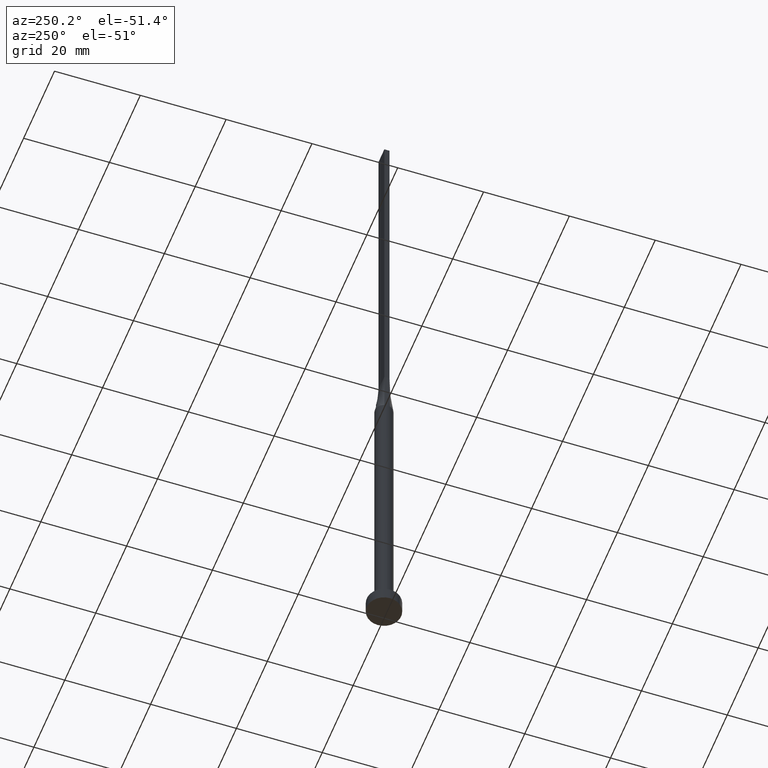
[diagram: clean part render]
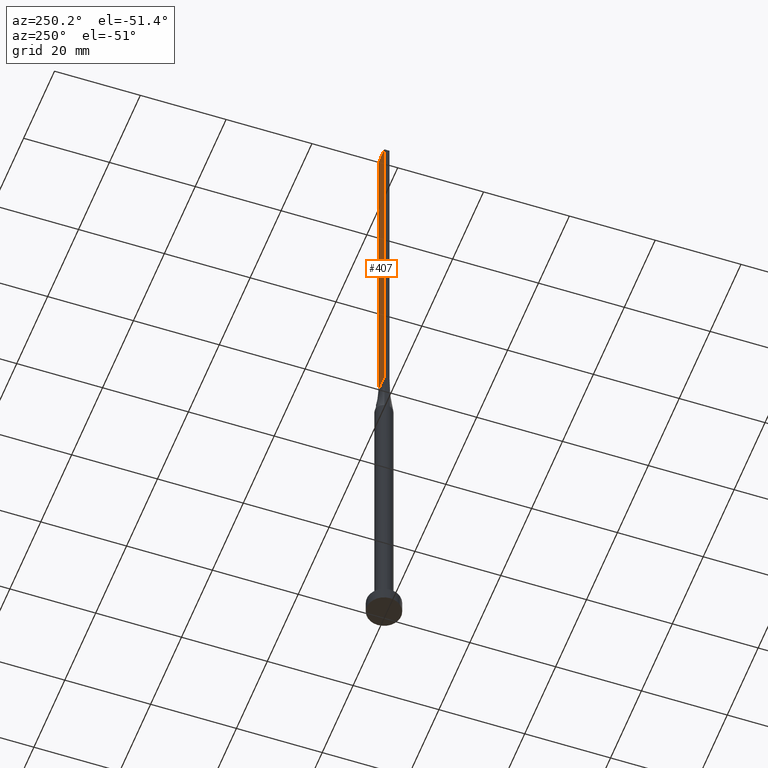
[diagram: same view with one face highlighted and labeled with its STEP entity id]
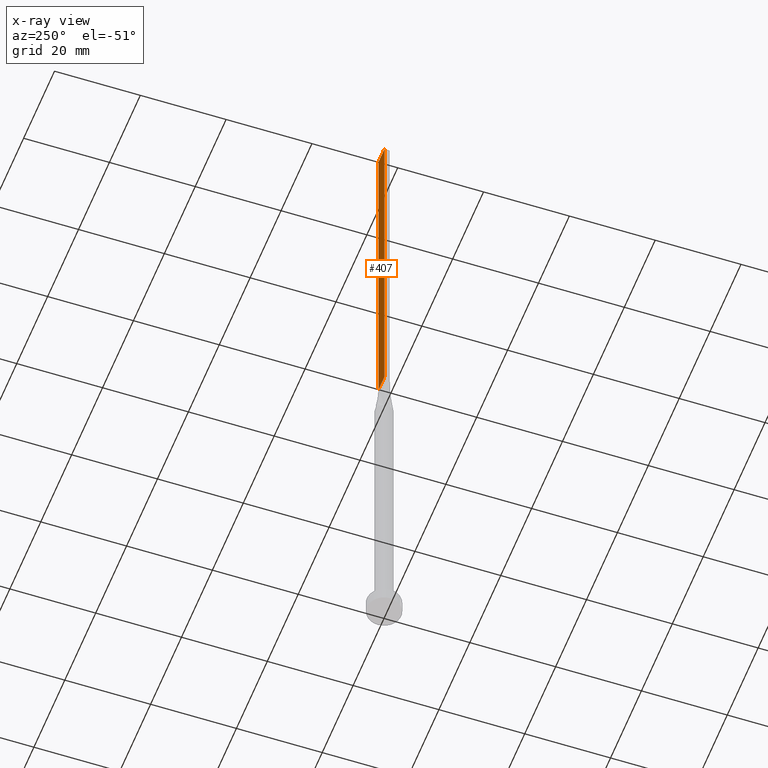
[diagram: x-ray of the same camera — body ghosted, the highlighted face saturated]
A machine part, auxiliary view. The second image highlights one B-rep face of the part: STEP entity #407.
The next image is the same camera in x-ray: the body ghosted, the highlighted face saturated — about 0% of this face is hidden behind the body in this view.
In plain terms, the highlighted planar face has unit normal (0, -1, 0).
Its self-contained STEP definition (entity closure, byte-faithful):
#10 = EDGE_CURVE ( 'NONE', #565, #192, #511, .T. ) ;
#33 = DIRECTION ( 'NONE',  ( -0.000000000000000000, -0.000000000000000000, -1.000000000000000000 ) ) ;
#45 = VECTOR ( 'NONE', #523, 1000.000000000000000 ) ;
#56 = ORIENTED_EDGE ( 'NONE', *, *, #527, .T. ) ;
#62 = VECTOR ( 'NONE', #464, 1000.000000000000000 ) ;
#71 = FACE_OUTER_BOUND ( 'NONE', #457, .T. ) ;
#79 = LINE ( 'NONE', #400, #543 ) ;
#90 = VERTEX_POINT ( 'NONE', #104 ) ;
#99 = CARTESIAN_POINT ( 'NONE',  ( 1.899999999999999689, 0.6000000000000001998, 160.0000000000000000 ) ) ;
#104 = CARTESIAN_POINT ( 'NONE',  ( 1.899999999999999689, 0.6000000000000001998, 80.00000000000000000 ) ) ;
#109 = CARTESIAN_POINT ( 'NONE',  ( -1.899999999999999689, 0.6000000000000001998, 80.00000000000000000 ) ) ;
#144 = PLANE ( 'NONE',  #504 ) ;
#192 = VERTEX_POINT ( 'NONE', #297 ) ;
#225 = ORIENTED_EDGE ( 'NONE', *, *, #10, .F. ) ;
#242 = DIRECTION ( 'NONE',  ( 0.000000000000000000, -1.000000000000000000, 0.000000000000000000 ) ) ;
#257 = LINE ( 'NONE', #328, #45 ) ;
#258 = LINE ( 'NONE', #409, #526 ) ;
#297 = CARTESIAN_POINT ( 'NONE',  ( -1.899999999999999689, 0.6000000000000001998, 160.0000000000000000 ) ) ;
#304 = CARTESIAN_POINT ( 'NONE',  ( 1.899999999999999689, 0.6000000000000001998, 160.0000000000000000 ) ) ;
#320 = DIRECTION ( 'NONE',  ( 0.000000000000000000, -0.000000000000000000, -1.000000000000000000 ) ) ;
#328 = CARTESIAN_POINT ( 'NONE',  ( -1.899999999999999689, 0.6000000000000001998, 80.00000000000000000 ) ) ;
#346 = VERTEX_POINT ( 'NONE', #109 ) ;
#395 = ORIENTED_EDGE ( 'NONE', *, *, #569, .F. ) ;
#400 = CARTESIAN_POINT ( 'NONE',  ( 1.899999999999999689, 0.6000000000000001998, 160.0000000000000000 ) ) ;
#407 = ADVANCED_FACE ( 'NONE', ( #71 ), #144, .F. ) ;
#409 = CARTESIAN_POINT ( 'NONE',  ( -1.899999999999999689, 0.6000000000000001998, 160.0000000000000000 ) ) ;
#457 = EDGE_LOOP ( 'NONE', ( #56, #395, #225, #554 ) ) ;
#464 = DIRECTION ( 'NONE',  ( -1.000000000000000000, 0.000000000000000000, 0.000000000000000000 ) ) ;
#466 = EDGE_CURVE ( 'NONE', #565, #90, #79, .T. ) ;
#504 = AXIS2_PLACEMENT_3D ( 'NONE', #513, #242, #320 ) ;
#511 = LINE ( 'NONE', #99, #62 ) ;
#513 = CARTESIAN_POINT ( 'NONE',  ( 1.899999999999999689, 0.6000000000000001998, 160.0000000000000000 ) ) ;
#523 = DIRECTION ( 'NONE',  ( -1.000000000000000000, -0.000000000000000000, -0.000000000000000000 ) ) ;
#526 = VECTOR ( 'NONE', #581, 1000.000000000000000 ) ;
#527 = EDGE_CURVE ( 'NONE', #90, #346, #257, .T. ) ;
#543 = VECTOR ( 'NONE', #33, 1000.000000000000000 ) ;
#554 = ORIENTED_EDGE ( 'NONE', *, *, #466, .T. ) ;
#565 = VERTEX_POINT ( 'NONE', #304 ) ;
#569 = EDGE_CURVE ( 'NONE', #192, #346, #258, .T. ) ;
#581 = DIRECTION ( 'NONE',  ( -0.000000000000000000, -0.000000000000000000, -1.000000000000000000 ) ) ;